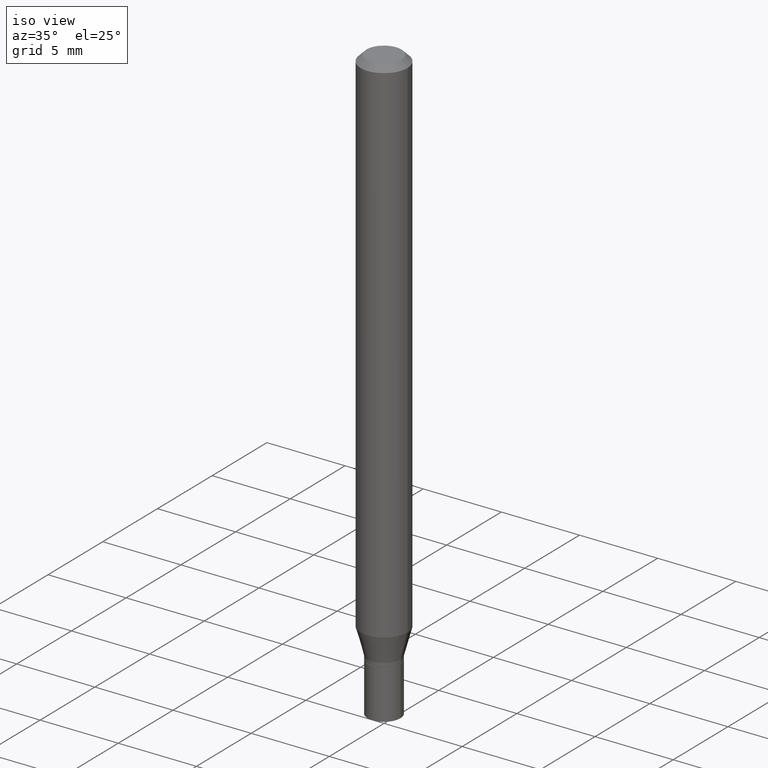
[diagram: clean part render]
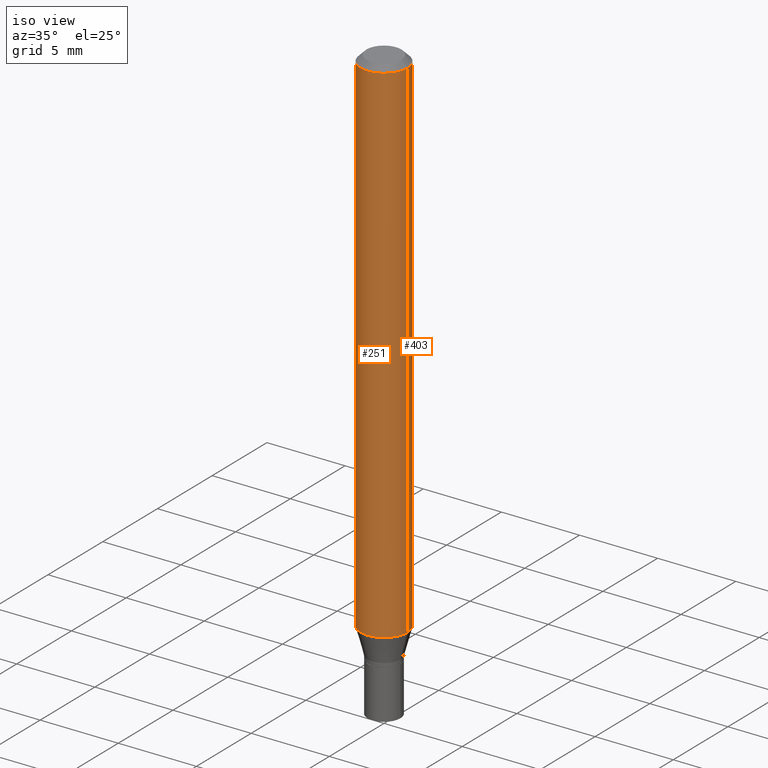
[diagram: same view with one multi-face feature highlighted, each face labeled with its STEP entity id]
A machine part, iso view. The highlighted faces form ONE feature: a constant-radius fillet chain: 2 tangent blend faces with common blend radius 1.4999 mm. The faces share edges in the B-rep.
Their STEP definitions:
[1] entity #251 (Cylinder):
#4 = DIRECTION ( 'NONE',  ( -2.445468806185136597E-29, 3.491481338843145583E-15, 1.000000000000000000 ) ) ;
#6 = CARTESIAN_POINT ( 'NONE',  ( 0.05904999999999999832, -4.647161662000212105E-16, -0.01499999999999999944 ) ) ;
#7 = VERTEX_POINT ( 'NONE', #9 ) ;
#9 = CARTESIAN_POINT ( 'NONE',  ( -0.05904999999999999832, -1.875798891048276269E-15, -0.01499999999999999944 ) ) ;
#18 = DIRECTION ( 'NONE',  ( -2.445468806185136597E-29, 3.491481338843145583E-15, 1.000000000000000000 ) ) ;
#36 = DIRECTION ( 'NONE',  ( 1.000000000000000000, -6.982962677686266711E-15, 4.876176775795936353E-29 ) ) ;
#43 = LINE ( 'NONE', #463, #353 ) ;
#48 = AXIS2_PLACEMENT_3D ( 'NONE', #81, #18, #266 ) ;
#49 = EDGE_CURVE ( 'NONE', #254, #7, #412, .T. ) ;
#56 = DIRECTION ( 'NONE',  ( -2.445468806185136877E-29, 3.491481338843145188E-15, 1.000000000000000000 ) ) ;
#81 = CARTESIAN_POINT ( 'NONE',  ( 3.178724777524041310E-29, -4.538376532946583262E-15, -1.299842700706030918 ) ) ;
#82 = DIRECTION ( 'NONE',  ( 1.000000000000000000, -6.982962677686266711E-15, 0.000000000000000000 ) ) ;
#114 = EDGE_LOOP ( 'NONE', ( #298, #394, #264, #167 ) ) ;
#119 = EDGE_CURVE ( 'NONE', #7, #252, #215, .T. ) ;
#134 = AXIS2_PLACEMENT_3D ( 'NONE', #250, #4, #36 ) ;
#136 = DIRECTION ( 'NONE',  ( -2.445468806185136877E-29, 3.491481338843145188E-15, 1.000000000000000000 ) ) ;
#149 = DIRECTION ( 'NONE',  ( -2.445468806185136597E-29, 3.491481338843145583E-15, 1.000000000000000000 ) ) ;
#167 = ORIENTED_EDGE ( 'NONE', *, *, #119, .F. ) ;
#178 = CARTESIAN_POINT ( 'NONE',  ( 0.05904999999999999832, -4.950720479063956605E-15, -1.299842700706030918 ) ) ;
#186 = VECTOR ( 'NONE', #56, 39.37007874015748143 ) ;
#215 = CIRCLE ( 'NONE', #408, 0.05904999999999999832 ) ;
#228 = VERTEX_POINT ( 'NONE', #178 ) ;
#250 = CARTESIAN_POINT ( 'NONE',  ( 0.000000000000000000, 0.000000000000000000, 0.000000000000000000 ) ) ;
#251 = ADVANCED_FACE ( 'NONE', ( #441 ), #260, .T. ) ;
#252 = VERTEX_POINT ( 'NONE', #6 ) ;
#254 = VERTEX_POINT ( 'NONE', #429 ) ;
#260 = CYLINDRICAL_SURFACE ( 'NONE', #134, 0.05904999999999999832 ) ;
#264 = ORIENTED_EDGE ( 'NONE', *, *, #319, .T. ) ;
#266 = DIRECTION ( 'NONE',  ( 1.000000000000000000, -6.982962677686273021E-15, 0.000000000000000000 ) ) ;
#298 = ORIENTED_EDGE ( 'NONE', *, *, #49, .F. ) ;
#307 = CIRCLE ( 'NONE', #48, 0.05904999999999999832 ) ;
#319 = EDGE_CURVE ( 'NONE', #228, #252, #43, .T. ) ;
#326 = CARTESIAN_POINT ( 'NONE',  ( 3.668203209277705088E-31, -5.237222008264718399E-17, -0.01499999999999999944 ) ) ;
#353 = VECTOR ( 'NONE', #136, 39.37007874015748143 ) ;
#394 = ORIENTED_EDGE ( 'NONE', *, *, #435, .T. ) ;
#408 = AXIS2_PLACEMENT_3D ( 'NONE', #326, #149, #82 ) ;
#412 = LINE ( 'NONE', #415, #186 ) ;
#415 = CARTESIAN_POINT ( 'NONE',  ( -0.05904999999999999832, 4.195754854663391478E-16, -2.904631170795521892E-30 ) ) ;
#429 = CARTESIAN_POINT ( 'NONE',  ( -0.05904999999999999832, -4.118801047480243769E-15, -1.299842700706030918 ) ) ;
#435 = EDGE_CURVE ( 'NONE', #254, #228, #307, .T. ) ;
#441 = FACE_OUTER_BOUND ( 'NONE', #114, .T. ) ;
#463 = CARTESIAN_POINT ( 'NONE',  ( 0.05904999999999999832, -4.123439461173740327E-16, 2.879382386107500220E-30 ) ) ;
[2] entity #403 (Cylinder):
#6 = CARTESIAN_POINT ( 'NONE',  ( 0.05904999999999999832, -4.647161662000212105E-16, -0.01499999999999999944 ) ) ;
#7 = VERTEX_POINT ( 'NONE', #9 ) ;
#9 = CARTESIAN_POINT ( 'NONE',  ( -0.05904999999999999832, -1.875798891048276269E-15, -0.01499999999999999944 ) ) ;
#11 = CARTESIAN_POINT ( 'NONE',  ( 3.178724777524041310E-29, -4.538376532946583262E-15, -1.299842700706030918 ) ) ;
#17 = CARTESIAN_POINT ( 'NONE',  ( 0.000000000000000000, 0.000000000000000000, 0.000000000000000000 ) ) ;
#43 = LINE ( 'NONE', #463, #353 ) ;
#49 = EDGE_CURVE ( 'NONE', #254, #7, #412, .T. ) ;
#56 = DIRECTION ( 'NONE',  ( -2.445468806185136877E-29, 3.491481338843145188E-15, 1.000000000000000000 ) ) ;
#77 = CIRCLE ( 'NONE', #163, 0.05904999999999999832 ) ;
#87 = DIRECTION ( 'NONE',  ( -2.445468806185136597E-29, 3.491481338843145583E-15, 1.000000000000000000 ) ) ;
#120 = CYLINDRICAL_SURFACE ( 'NONE', #271, 0.05904999999999999832 ) ;
#136 = DIRECTION ( 'NONE',  ( -2.445468806185136877E-29, 3.491481338843145188E-15, 1.000000000000000000 ) ) ;
#137 = ORIENTED_EDGE ( 'NONE', *, *, #160, .T. ) ;
#160 = EDGE_CURVE ( 'NONE', #228, #254, #77, .T. ) ;
#163 = AXIS2_PLACEMENT_3D ( 'NONE', #11, #192, #349 ) ;
#178 = CARTESIAN_POINT ( 'NONE',  ( 0.05904999999999999832, -4.950720479063956605E-15, -1.299842700706030918 ) ) ;
#179 = DIRECTION ( 'NONE',  ( 1.000000000000000000, -6.982962677686266711E-15, 0.000000000000000000 ) ) ;
#186 = VECTOR ( 'NONE', #56, 39.37007874015748143 ) ;
#192 = DIRECTION ( 'NONE',  ( -2.445468806185136597E-29, 3.491481338843145583E-15, 1.000000000000000000 ) ) ;
#205 = EDGE_LOOP ( 'NONE', ( #137, #330, #414, #258 ) ) ;
#223 = CARTESIAN_POINT ( 'NONE',  ( 3.668203209277705088E-31, -5.237222008264718399E-17, -0.01499999999999999944 ) ) ;
#228 = VERTEX_POINT ( 'NONE', #178 ) ;
#252 = VERTEX_POINT ( 'NONE', #6 ) ;
#254 = VERTEX_POINT ( 'NONE', #429 ) ;
#258 = ORIENTED_EDGE ( 'NONE', *, *, #319, .F. ) ;
#271 = AXIS2_PLACEMENT_3D ( 'NONE', #17, #367, #331 ) ;
#319 = EDGE_CURVE ( 'NONE', #228, #252, #43, .T. ) ;
#330 = ORIENTED_EDGE ( 'NONE', *, *, #49, .T. ) ;
#331 = DIRECTION ( 'NONE',  ( 1.000000000000000000, -6.982962677686266711E-15, 4.876176775795936353E-29 ) ) ;
#337 = FACE_OUTER_BOUND ( 'NONE', #205, .T. ) ;
#349 = DIRECTION ( 'NONE',  ( 1.000000000000000000, -6.982962677686273021E-15, 0.000000000000000000 ) ) ;
#353 = VECTOR ( 'NONE', #136, 39.37007874015748143 ) ;
#367 = DIRECTION ( 'NONE',  ( -2.445468806185136597E-29, 3.491481338843145583E-15, 1.000000000000000000 ) ) ;
#373 = EDGE_CURVE ( 'NONE', #252, #7, #401, .T. ) ;
#401 = CIRCLE ( 'NONE', #417, 0.05904999999999999832 ) ;
#403 = ADVANCED_FACE ( 'NONE', ( #337 ), #120, .T. ) ;
#412 = LINE ( 'NONE', #415, #186 ) ;
#414 = ORIENTED_EDGE ( 'NONE', *, *, #373, .F. ) ;
#415 = CARTESIAN_POINT ( 'NONE',  ( -0.05904999999999999832, 4.195754854663391478E-16, -2.904631170795521892E-30 ) ) ;
#417 = AXIS2_PLACEMENT_3D ( 'NONE', #223, #87, #179 ) ;
#429 = CARTESIAN_POINT ( 'NONE',  ( -0.05904999999999999832, -4.118801047480243769E-15, -1.299842700706030918 ) ) ;
#463 = CARTESIAN_POINT ( 'NONE',  ( 0.05904999999999999832, -4.123439461173740327E-16, 2.879382386107500220E-30 ) ) ;